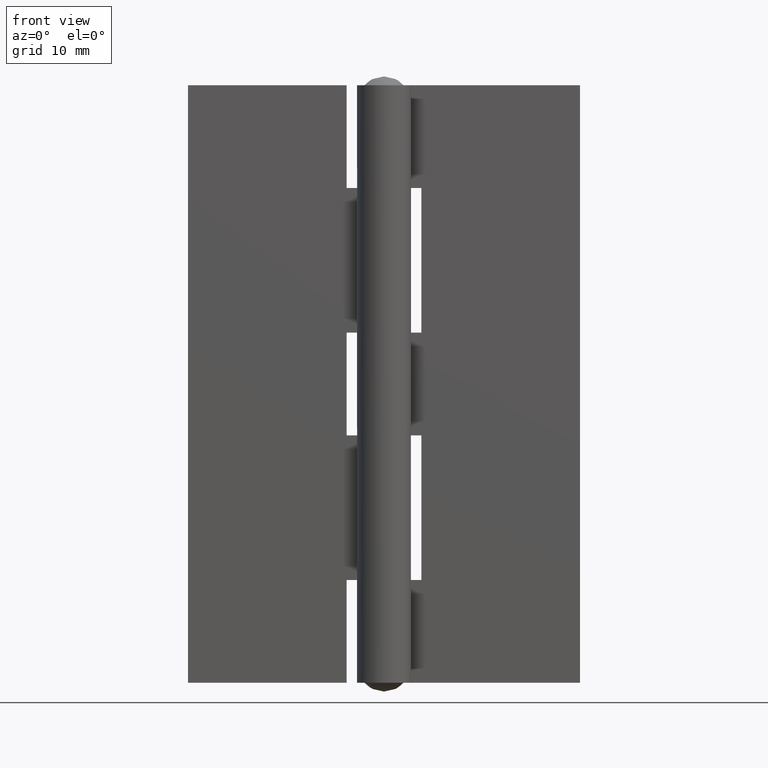
[diagram: clean part render]
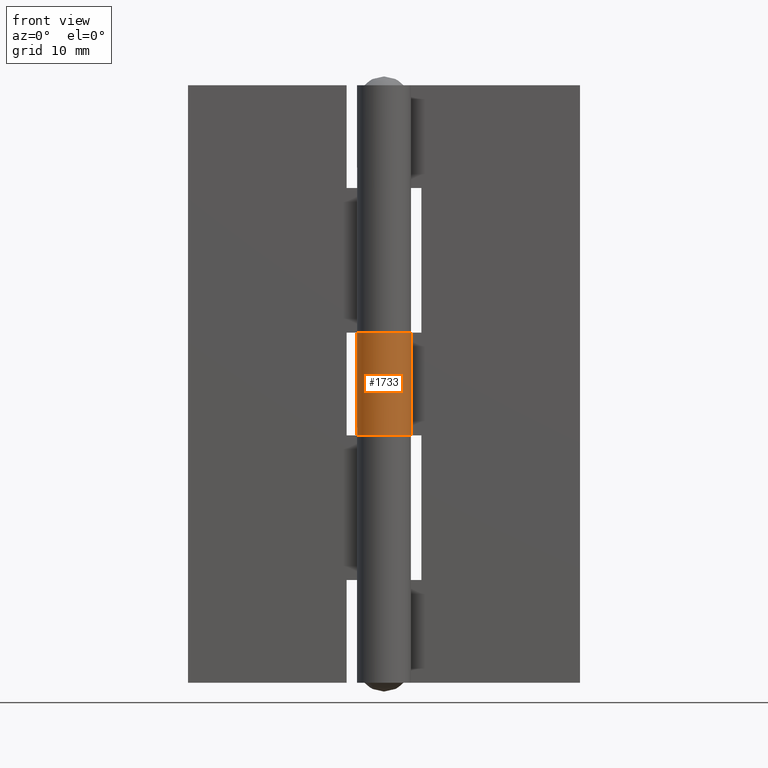
[diagram: same view with one face highlighted and labeled with its STEP entity id]
A machine part, front view. The second image highlights one B-rep face of the part: STEP entity #1733.
In plain terms, the highlighted face is a freeform B-spline surface patch.
Its self-contained STEP definition (entity closure, byte-faithful):
#1317=CARTESIAN_POINT('',(2.384848264526935,1.650003137932380,37.500000000000000));
#1318=VERTEX_POINT('',#1317);
#1327=CARTESIAN_POINT('',(0.0,2.900001999999955,37.500000000000000));
#1328=VERTEX_POINT('',#1327);
#1334=CARTESIAN_POINT('',(2.384848264526935,1.650003137932380,37.500000000000000));
#1335=CARTESIAN_POINT('',(2.585052980047412,1.361177000443129,37.499999999999979));
#1336=CARTESIAN_POINT('',(2.840408553696215,0.793396426772375,37.500000000000057));
#1337=CARTESIAN_POINT('',(2.922414604626384,0.027768710025527,37.500000000000078));
#1338=CARTESIAN_POINT('',(2.864667947588417,-0.512978454142220,37.499999999999872));
#1339=CARTESIAN_POINT('',(2.729467696225891,-1.039297580457754,37.500000000000071));
#1340=CARTESIAN_POINT('',(2.471707584047423,-1.567346657736631,37.500000000000078));
#1341=CARTESIAN_POINT('',(2.080941275793447,-2.042793194939228,37.499999999999730));
#1342=CARTESIAN_POINT('',(1.711472513118276,-2.354758050047303,37.500000000000142));
#1343=CARTESIAN_POINT('',(1.265558713868405,-2.628590224645237,37.499999999999993));
#1344=CARTESIAN_POINT('',(0.764702932742131,-2.819238687169130,37.500000000000007));
#1345=CARTESIAN_POINT('',(0.236975960461513,-2.902160855527304,37.500000000000050));
#1346=CARTESIAN_POINT('',(-0.246040665817602,-2.902239873768234,37.500000000000043));
#1347=CARTESIAN_POINT('',(-0.813416140974999,-2.810303195613244,37.499999999999503));
#1348=CARTESIAN_POINT('',(-1.413299008357366,-2.564197659686851,37.500000000000639));
#1349=CARTESIAN_POINT('',(-1.895108140392384,-2.214155291058901,37.499999999999602));
#1350=CARTESIAN_POINT('',(-2.294948922035886,-1.802890792981921,37.500000000000313));
#1351=CARTESIAN_POINT('',(-2.638316481933253,-1.277884634866727,37.499999999999837));
#1352=CARTESIAN_POINT('',(-2.844975056572785,-0.663725423344904,37.500000000000057));
#1353=CARTESIAN_POINT('',(-2.915419130934521,-0.063619759817051,37.500000000000007));
#1354=CARTESIAN_POINT('',(-2.876246332062333,0.540760005195861,37.500000000000007));
#1355=CARTESIAN_POINT('',(-2.691632204551829,1.140702350434860,37.500000000000043));
#1356=CARTESIAN_POINT('',(-2.363039571057896,1.719115625877351,37.499999999999922));
#1357=CARTESIAN_POINT('',(-1.944939874971584,2.186802253122493,37.500000000000313));
#1358=CARTESIAN_POINT('',(-1.447362709730062,2.532693598749724,37.499999999999758));
#1359=CARTESIAN_POINT('',(-0.813080646629485,2.816471708811308,37.500000000000242));
#1360=CARTESIAN_POINT('',(-0.331351419095346,2.900261542343701,37.499999999999069));
#1361=CARTESIAN_POINT('',(0.0,2.900001999999955,37.500000000000000));
#1362=B_SPLINE_CURVE_WITH_KNOTS('',3,(#1334,#1335,#1336,#1337,#1338,#1339,#1340,#1341,#1342,#1343,#1344,#1345,#1346,#1347,#1348,#1349,#1350,#1351,#1352,#1353,#1354,#1355,#1356,#1357,#1358,#1359,#1360,#1361),.UNSPECIFIED.,.F.,.U.,(4,1,1,1,1,1,1,1,1,1,1,1,1,1,1,1,1,1,1,1,1,1,1,1,1,4),(0.000000359963922,1.054165231920036,1.837295994852221,2.289097193278115,2.680663550615284,3.463786921522607,4.035988742476791,4.517922105866667,4.909489321541560,5.602244230971536,6.114279632765747,6.505843070418734,7.048013624102667,7.831060446577444,8.433456552941824,8.825019976864049,9.547908704663474,10.300901473237669,10.752698829878179,11.355087222004240,12.108056435287780,12.620087365329960,13.342975041270140,13.975495119682870,14.427299819934831,15.421227777951650),.UNSPECIFIED.);
#1363=EDGE_CURVE('',#1318,#1328,#1362,.T.);
#1375=CARTESIAN_POINT('',(0.0,2.900001999999955,26.500000000000000));
#1376=VERTEX_POINT('',#1375);
#1389=CARTESIAN_POINT('',(2.384848264526935,1.650003137932380,26.500000000000000));
#1390=VERTEX_POINT('',#1389);
#1396=CARTESIAN_POINT('',(0.0,2.900001999999955,26.500000000000000));
#1397=CARTESIAN_POINT('',(-0.230916321730196,2.900051843108230,26.500000000000000));
#1398=CARTESIAN_POINT('',(-0.602353719673404,2.855390495743720,26.500000000000071));
#1399=CARTESIAN_POINT('',(-1.119765648952480,2.688738741734422,26.499999999999979));
#1400=CARTESIAN_POINT('',(-1.577478078587122,2.454787703615863,26.500000000000160));
#1401=CARTESIAN_POINT('',(-2.022418496407375,2.106110985003808,26.499999999999609));
#1402=CARTESIAN_POINT('',(-2.387912343119073,1.675276795925665,26.500000000000689));
#1403=CARTESIAN_POINT('',(-2.636823900441954,1.237078739044597,26.499999999998941));
#1404=CARTESIAN_POINT('',(-2.819086230961731,0.746396310268891,26.500000000001322));
#1405=CARTESIAN_POINT('',(-2.918715160771234,0.179414710363899,26.499999999999201));
#1406=CARTESIAN_POINT('',(-2.890233980850147,-0.395882159486411,26.500000000000281));
#1407=CARTESIAN_POINT('',(-2.746456390763533,-0.992895981586579,26.499999999999950));
#1408=CARTESIAN_POINT('',(-2.518447632240402,-1.478629452310000,26.499999999999861));
#1409=CARTESIAN_POINT('',(-2.163026591794620,-1.954493632544597,26.500000000000469));
#1410=CARTESIAN_POINT('',(-1.765279773628264,-2.327173050098241,26.499999999998590));
#1411=CARTESIAN_POINT('',(-1.316440731568675,-2.599297413302788,26.500000000001279));
#1412=CARTESIAN_POINT('',(-0.839815477172867,-2.789064019659108,26.499999999999620));
#1413=CARTESIAN_POINT('',(-0.278349160770210,-2.913486613529891,26.500000000000210));
#1414=CARTESIAN_POINT('',(0.349717581607067,-2.903580579693688,26.499999999999918));
#1415=CARTESIAN_POINT('',(0.996042706109635,-2.746024780245990,26.500000000000011));
#1416=CARTESIAN_POINT('',(1.506704662314188,-2.501376909524860,26.500000000000000));
#1417=CARTESIAN_POINT('',(1.996198584353799,-2.129797054360468,26.500000000000011));
#1418=CARTESIAN_POINT('',(2.371099506710147,-1.705908385575667,26.500000000000000));
#1419=CARTESIAN_POINT('',(2.674844440871152,-1.171026440093858,26.500000000000011));
#1420=CARTESIAN_POINT('',(2.830761380777487,-0.690714034280843,26.499999999999989));
#1421=CARTESIAN_POINT('',(2.906252172217580,-0.183420685755547,26.500000000000060));
#1422=CARTESIAN_POINT('',(2.902129370515008,0.331093308728724,26.499999999999961));
#1423=CARTESIAN_POINT('',(2.757262196087677,0.992085842355864,26.499999999999570));
#1424=CARTESIAN_POINT('',(2.539169219437536,1.427133653108593,26.500000000002331));
#1425=CARTESIAN_POINT('',(2.384848264526935,1.650003137932380,26.500000000000000));
#1426=B_SPLINE_CURVE_WITH_KNOTS('',3,(#1396,#1397,#1398,#1399,#1400,#1401,#1402,#1403,#1404,#1405,#1406,#1407,#1408,#1409,#1410,#1411,#1412,#1413,#1414,#1415,#1416,#1417,#1418,#1419,#1420,#1421,#1422,#1423,#1424,#1425),.UNSPECIFIED.,.F.,.U.,(4,1,1,1,1,1,1,1,1,1,1,1,1,1,1,1,1,1,1,1,1,1,1,1,1,1,1,4),(0.000000359959415,0.692735688596658,1.114405383404840,1.626452659728550,2.228857436963235,2.801142201469432,3.313172984215985,3.734862933723173,4.367308028869736,5.029963093412622,5.451638924892514,6.204646969981392,6.626314962169515,7.228717902535147,7.831060446576219,8.192520740326856,8.764780936417790,9.547908704662936,10.059949741606710,10.752698829877970,11.234634287120301,11.897208410370020,12.439377229152839,13.071892956558100,13.403215133295900,13.975495119682900,14.608005259282031,15.421227777951650),.UNSPECIFIED.);
#1427=EDGE_CURVE('',#1376,#1390,#1426,.T.);
#1672=CARTESIAN_POINT('',(2.384848264526935,1.650003137932380,37.500000000000000));
#1673=CARTESIAN_POINT('',(2.384848264526935,1.650003137932380,26.500000000000000));
#1674=QUASI_UNIFORM_CURVE('',1,(#1672,#1673),.UNSPECIFIED.,.F.,.U.);
#1675=EDGE_CURVE('',#1318,#1390,#1674,.T.);
#1686=CARTESIAN_POINT('',(0.0,2.900001999999955,37.500000000000000));
#1687=CARTESIAN_POINT('',(0.0,2.900001999999955,26.500000000000000));
#1688=QUASI_UNIFORM_CURVE('',1,(#1686,#1687),.UNSPECIFIED.,.F.,.U.);
#1689=EDGE_CURVE('',#1328,#1376,#1688,.T.);
#1705=CARTESIAN_POINT('',(0.092195748218132,2.898536103624465,37.775000000000013));
#1706=CARTESIAN_POINT('',(0.092195748218132,2.898536103624465,26.218125000000001));
#1707=CARTESIAN_POINT('',(-3.595599324984706,3.015836359303159,37.775000000000013));
#1708=CARTESIAN_POINT('',(-3.595599324984706,3.015836359303159,26.218124999999997));
#1709=CARTESIAN_POINT('',(-2.838252459427602,-0.595260091520641,37.775000000000013));
#1710=CARTESIAN_POINT('',(-2.838252459427602,-0.595260091520641,26.218125000000001));
#1711=CARTESIAN_POINT('',(-2.080905593870498,-4.206356542344440,37.775000000000013));
#1712=CARTESIAN_POINT('',(-2.080905593870498,-4.206356542344440,26.218124999999997));
#1713=CARTESIAN_POINT('',(1.249008426663826,-2.617248469314052,37.775000000000013));
#1714=CARTESIAN_POINT('',(1.249008426663826,-2.617248469314052,26.218125000000001));
#1715=CARTESIAN_POINT('',(4.578922447198148,-1.028140396283663,37.775000000000013));
#1716=CARTESIAN_POINT('',(4.578922447198148,-1.028140396283663,26.218124999999997));
#1717=CARTESIAN_POINT('',(2.248038819080010,1.832029767201762,37.775000000000013));
#1718=CARTESIAN_POINT('',(2.248038819080010,1.832029767201762,26.218125000000001));
#1726=(BOUNDED_SURFACE()B_SPLINE_SURFACE(1,2,((#1705,#1707,#1709,#1711,#1713,#1715,#1717),(#1706,#1708,#1710,#1712,#1714,#1716,#1718)),.UNSPECIFIED.,.F.,.F.,.U.)B_SPLINE_SURFACE_WITH_KNOTS((2,2),(3,2,2,3),(0.0,11.556875000000010),(0.0,5.636831740681011,11.273663481362020,16.910495222043028),.UNSPECIFIED.)GEOMETRIC_REPRESENTATION_ITEM()RATIONAL_B_SPLINE_SURFACE(((1.0,0.617951097721073,1.0,0.617951097721073,1.0,0.617951097721073,1.0),(1.0,0.617951097721073,1.0,0.617951097721073,1.0,0.617951097721073,1.0)))REPRESENTATION_ITEM('')SURFACE());
#1727=ORIENTED_EDGE('',*,*,#1675,.F.);
#1728=ORIENTED_EDGE('',*,*,#1363,.T.);
#1729=ORIENTED_EDGE('',*,*,#1689,.T.);
#1730=ORIENTED_EDGE('',*,*,#1427,.T.);
#1731=EDGE_LOOP('',(#1727,#1728,#1729,#1730));
#1732=FACE_OUTER_BOUND('',#1731,.T.);
#1733=ADVANCED_FACE('',(#1732),#1726,.T.);